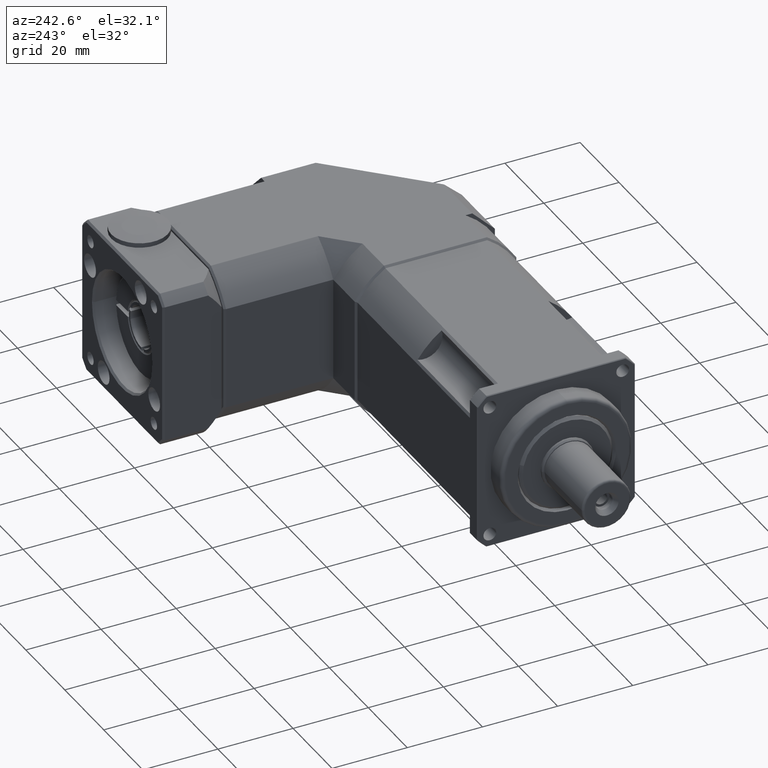
[diagram: clean part render]
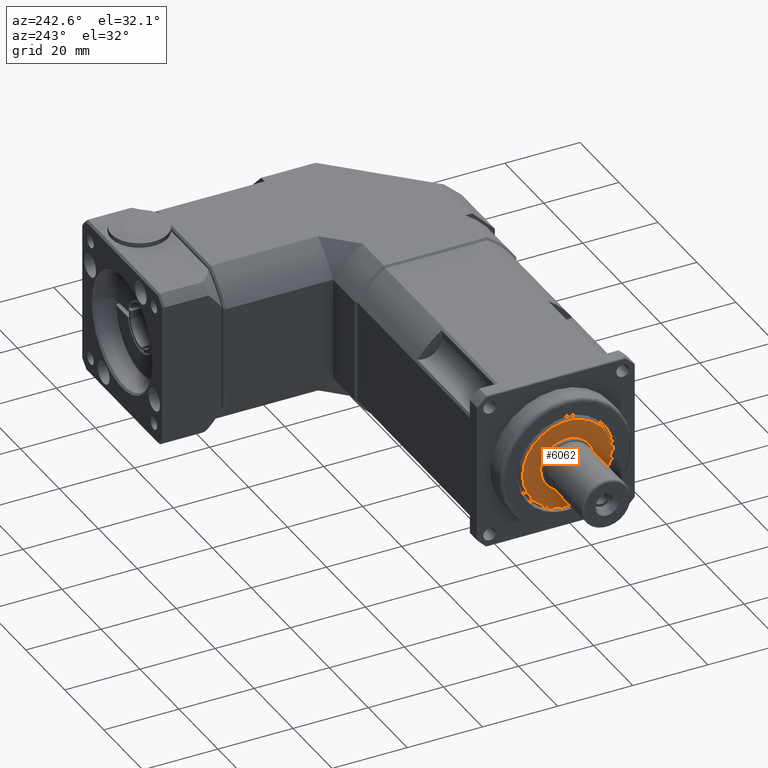
[diagram: same view with one face highlighted and labeled with its STEP entity id]
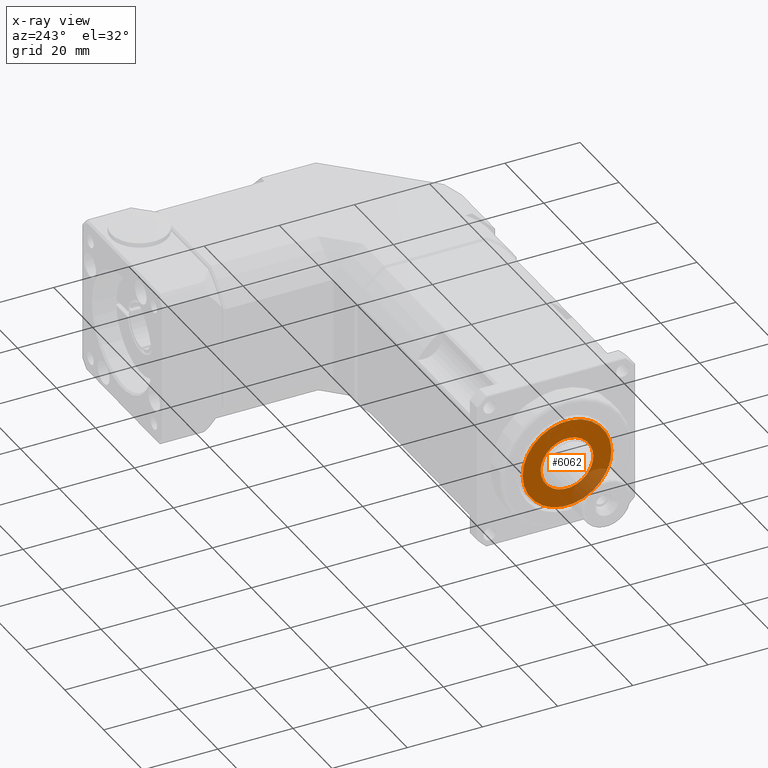
[diagram: x-ray of the same camera — body ghosted, the highlighted face saturated]
A machine part, auxiliary view. The second image highlights one B-rep face of the part: STEP entity #6062.
The next image is the same camera in x-ray: the body ghosted, the highlighted face saturated — about 15% of this face is hidden behind the body in this view.
In plain terms, the highlighted planar face has unit normal (-1, -0, 0).
Its self-contained STEP definition (entity closure, byte-faithful):
#993=FACE_BOUND('',#1909,.T.);
#1403=FACE_OUTER_BOUND('',#1908,.T.);
#1908=EDGE_LOOP('',(#4614));
#1909=EDGE_LOOP('',(#4615));
#2268=CIRCLE('',#6445,7.);
#2341=CIRCLE('',#6661,11.8);
#2600=VERTEX_POINT('',#9217);
#2788=VERTEX_POINT('',#9966);
#3177=EDGE_CURVE('',#2600,#2600,#2268,.T.);
#3449=EDGE_CURVE('',#2788,#2788,#2341,.T.);
#4614=ORIENTED_EDGE('',*,*,#3449,.F.);
#4615=ORIENTED_EDGE('',*,*,#3177,.T.);
#5469=PLANE('',#6662);
#6062=ADVANCED_FACE('',(#1403,#993),#5469,.T.);
#6445=AXIS2_PLACEMENT_3D('',#9218,#7392,#7393);
#6661=AXIS2_PLACEMENT_3D('',#9967,#7965,#7966);
#6662=AXIS2_PLACEMENT_3D('',#9968,#7967,#7968);
#7392=DIRECTION('center_axis',(1.,1.90121509596234E-17,-8.20785483355153E-17));
#7393=DIRECTION('ref_axis',(-8.42495736037555E-17,0.218721876738978,-0.975787241480324));
#7965=DIRECTION('center_axis',(1.,1.90121509596234E-17,-8.20785483355153E-17));
#7966=DIRECTION('ref_axis',(5.9944020754361E-19,-0.975787241480324,-0.218721876738978));
#7967=DIRECTION('center_axis',(-1.,-1.90121509596234E-17,8.20785483355153E-17));
#7968=DIRECTION('ref_axis',(0.,-0.218721876738978,0.975787241480324));
#9217=CARTESIAN_POINT('',(-39.30821350474,12.8831891554528,-3.04030690800375));
#9218=CARTESIAN_POINT('Origin',(-39.30821350474,6.05267846509056,-4.5713600451766));
#9966=CARTESIAN_POINT('',(-39.30821350474,17.5669679145584,-1.99044189965666));
#9967=CARTESIAN_POINT('Origin',(-39.30821350474,6.05267846509056,-4.5713600451766));
#9968=CARTESIAN_POINT('Origin',(-39.30821350474,18.2500189835946,-1.83733658593938));